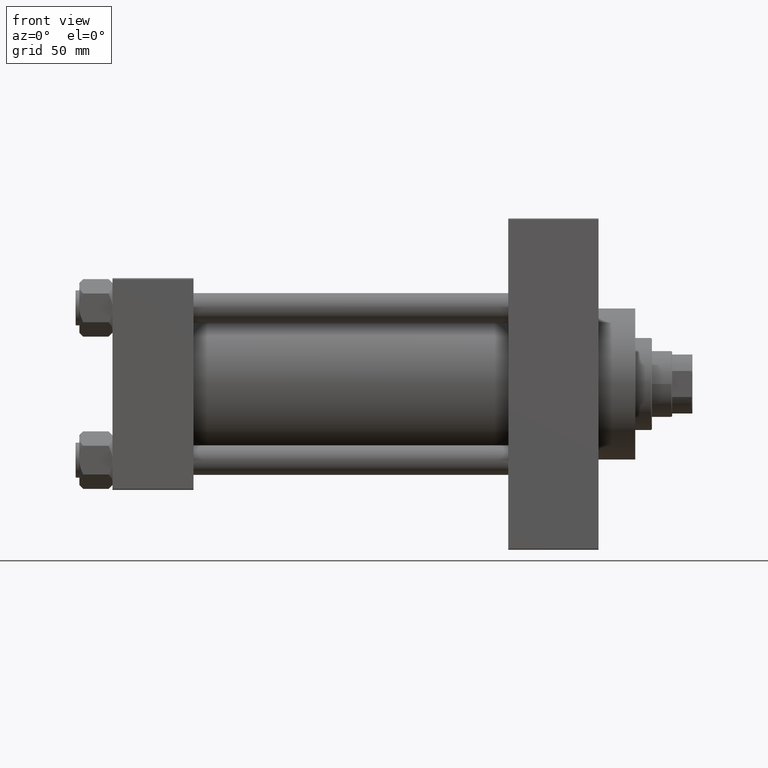
[diagram: clean part render]
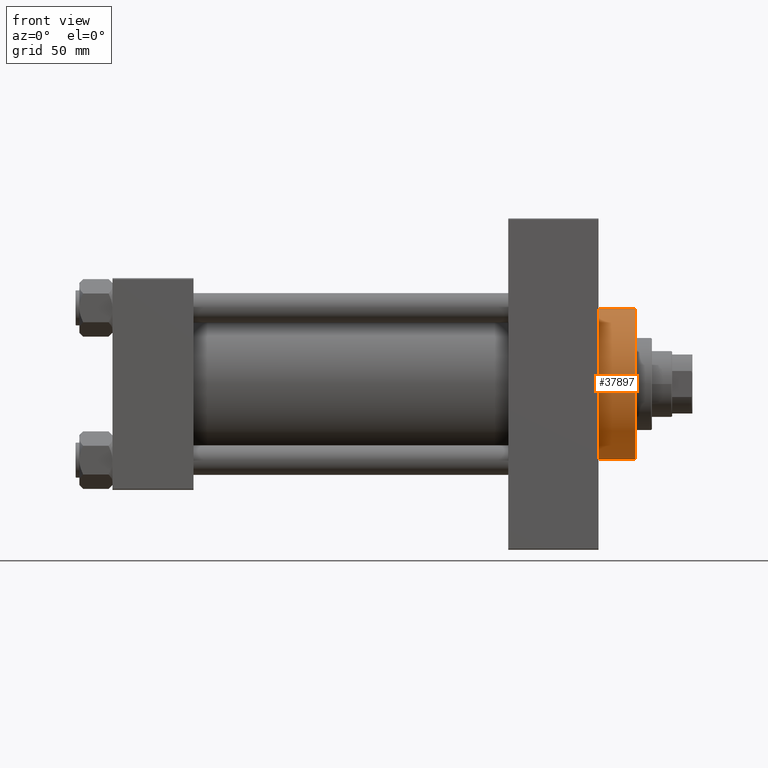
[diagram: same view with one face highlighted and labeled with its STEP entity id]
A machine part, front view. The second image highlights one B-rep face of the part: STEP entity #37897.
In plain terms, the highlighted cylindrical surface (partial cylindrical patch) has radius 41 mm, axis along (-1, -0, -0).
Its self-contained STEP definition (entity closure, byte-faithful):
#132 = DIRECTION ( 'NONE',  ( 0.000000000000000000, 0.000000000000000000, 1.000000000000000000 ) ) ;
#2477 = CIRCLE ( 'NONE', #30168, 41.00000000000000000 ) ;
#3013 = DIRECTION ( 'NONE',  ( 1.000000000000000000, 0.000000000000000000, 0.000000000000000000 ) ) ;
#5253 = ORIENTED_EDGE ( 'NONE', *, *, #26408, .T. ) ;
#5627 = CARTESIAN_POINT ( 'NONE',  ( 284.0000000000000568, 0.000000000000000000, 0.000000000000000000 ) ) ;
#8543 = DIRECTION ( 'NONE',  ( -1.000000000000000000, -0.000000000000000000, -0.000000000000000000 ) ) ;
#9016 = DIRECTION ( 'NONE',  ( 0.000000000000000000, 0.000000000000000000, -1.000000000000000000 ) ) ;
#9148 = VECTOR ( 'NONE', #31159, 1000.000000000000000 ) ;
#10723 = DIRECTION ( 'NONE',  ( 0.000000000000000000, 0.000000000000000000, -1.000000000000000000 ) ) ;
#12110 = AXIS2_PLACEMENT_3D ( 'NONE', #14807, #3013, #10723 ) ;
#12616 = LINE ( 'NONE', #20564, #9148 ) ;
#13355 = VECTOR ( 'NONE', #8543, 1000.000000000000000 ) ;
#13733 = CARTESIAN_POINT ( 'NONE',  ( 264.0000000000000000, 5.021051876504148963E-15, -41.00000000000000000 ) ) ;
#13996 = EDGE_CURVE ( 'NONE', #31391, #41210, #2477, .T. ) ;
#14053 = EDGE_CURVE ( 'NONE', #31391, #30648, #27556, .T. ) ;
#14484 = CARTESIAN_POINT ( 'NONE',  ( 284.0000000000000568, 0.000000000000000000, 41.00000000000000000 ) ) ;
#14807 = CARTESIAN_POINT ( 'NONE',  ( 264.0000000000000000, 0.000000000000000000, 0.000000000000000000 ) ) ;
#16576 = ORIENTED_EDGE ( 'NONE', *, *, #13996, .F. ) ;
#16717 = DIRECTION ( 'NONE',  ( 1.000000000000000000, 0.000000000000000000, 0.000000000000000000 ) ) ;
#19794 = ORIENTED_EDGE ( 'NONE', *, *, #14053, .T. ) ;
#20564 = CARTESIAN_POINT ( 'NONE',  ( 284.0000000000000568, 5.021051876504148963E-15, -41.00000000000000000 ) ) ;
#24956 = CARTESIAN_POINT ( 'NONE',  ( 264.0000000000000000, 0.000000000000000000, 41.00000000000000000 ) ) ;
#25685 = CARTESIAN_POINT ( 'NONE',  ( 284.0000000000000568, 0.000000000000000000, 0.000000000000000000 ) ) ;
#26408 = EDGE_CURVE ( 'NONE', #30648, #29211, #32883, .T. ) ;
#27556 = LINE ( 'NONE', #31161, #13355 ) ;
#27939 = CARTESIAN_POINT ( 'NONE',  ( 284.0000000000000568, 5.021051876504148963E-15, -41.00000000000000000 ) ) ;
#29211 = VERTEX_POINT ( 'NONE', #13733 ) ;
#30168 = AXIS2_PLACEMENT_3D ( 'NONE', #5627, #16717, #9016 ) ;
#30648 = VERTEX_POINT ( 'NONE', #24956 ) ;
#31159 = DIRECTION ( 'NONE',  ( -1.000000000000000000, -0.000000000000000000, -0.000000000000000000 ) ) ;
#31161 = CARTESIAN_POINT ( 'NONE',  ( 284.0000000000000568, 0.000000000000000000, 41.00000000000000000 ) ) ;
#31391 = VERTEX_POINT ( 'NONE', #14484 ) ;
#32883 = CIRCLE ( 'NONE', #12110, 41.00000000000000000 ) ;
#33166 = EDGE_CURVE ( 'NONE', #41210, #29211, #12616, .T. ) ;
#34431 = ORIENTED_EDGE ( 'NONE', *, *, #33166, .F. ) ;
#36405 = EDGE_LOOP ( 'NONE', ( #34431, #16576, #19794, #5253 ) ) ;
#36760 = DIRECTION ( 'NONE',  ( -1.000000000000000000, -0.000000000000000000, -0.000000000000000000 ) ) ;
#37228 = FACE_OUTER_BOUND ( 'NONE', #36405, .T. ) ;
#37897 = ADVANCED_FACE ( 'NONE', ( #37228 ), #43764, .T. ) ;
#38801 = AXIS2_PLACEMENT_3D ( 'NONE', #25685, #36760, #132 ) ;
#41210 = VERTEX_POINT ( 'NONE', #27939 ) ;
#43764 = CYLINDRICAL_SURFACE ( 'NONE', #38801, 41.00000000000000000 ) ;